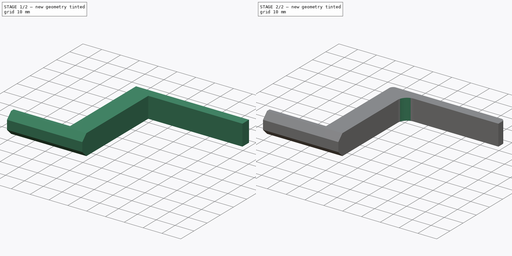
[diagram: build sequence overview — one tinted view per stage of 2, left to right]
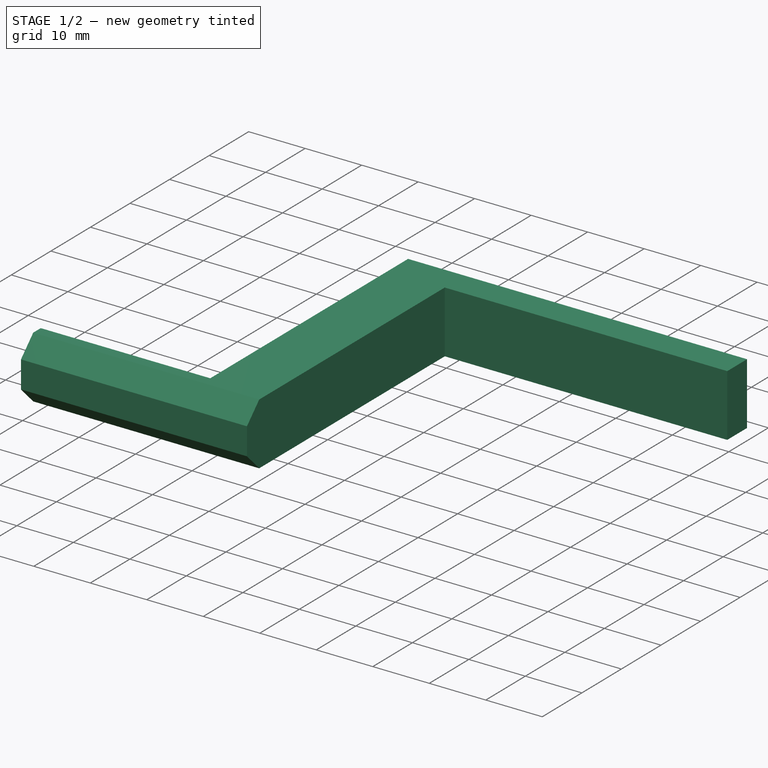
[diagram: stage 1 of 2 — iso view after this stage's code; geometry added in this stage tinted green]
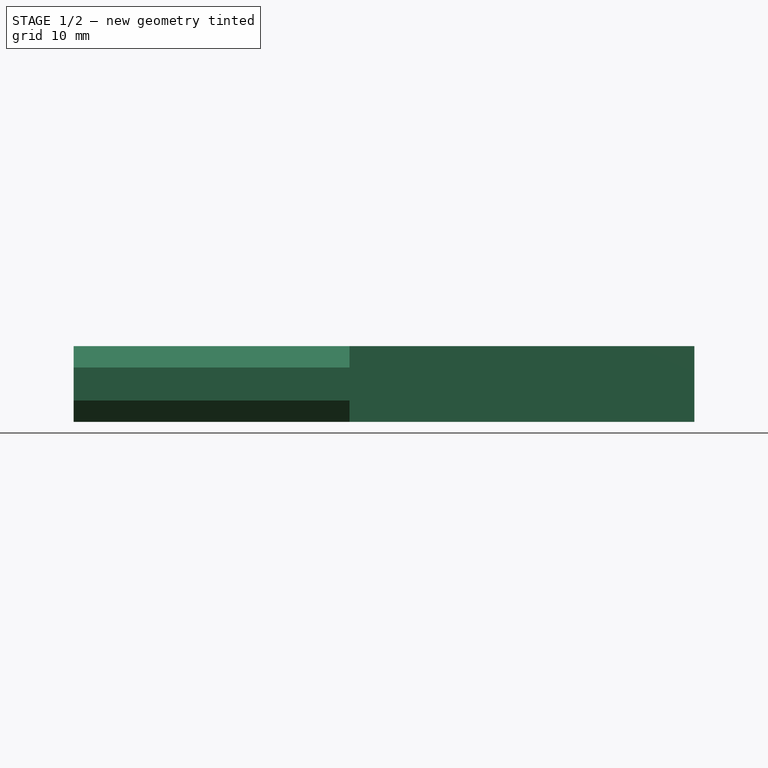
[diagram: stage 1 of 2 — front view after this stage's code; geometry added in this stage tinted green]
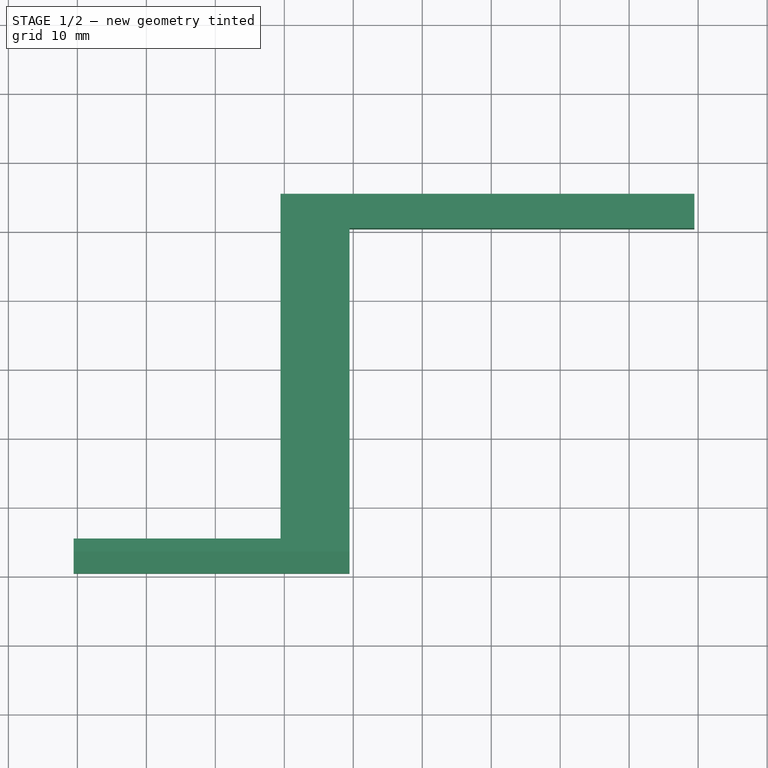
[diagram: stage 1 of 2 — top view after this stage's code; geometry added in this stage tinted green]
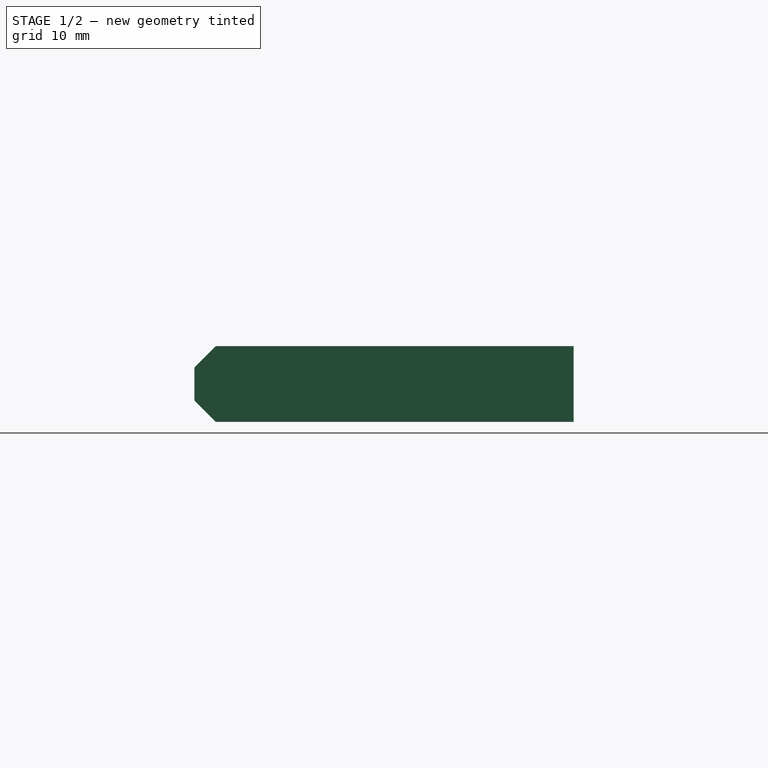
[diagram: stage 1 of 2 — right view after this stage's code; geometry added in this stage tinted green]
FCSTD DOCUMENT  (FreeCAD 0.18R4 (GitTag))
Label: Gancho_LG
License: All rights reserved
LicenseURL: http://en.wikipedia.org/wiki/All_rights_reserved
objects: PartDesign::Fillet×2, Sketcher::SketchObject×1, PartDesign::Pad×1, PartDesign::Chamfer×1, PartDesign::Body×1
note: 7 computed .brp shape members not serialized (recipe doc carries the construction recipe); baked Part::Feature solids carry a one-line shape summary decoded from their .brp

FEATURE [Sketcher::SketchObject] Sketch
  MapMode = 5
  Support = -> [XY_Plane]
  sketch-geometry (8):
    g0: LineSegment StartX=-50.5447 StartY=-24.6161 StartZ=0 EndX=-50.5447 EndY=-29.6161 EndZ=0
    g1: LineSegment StartX=-50.5447 StartY=-29.6161 StartZ=0 EndX=-10.5447 EndY=-29.6161 EndZ=0
    g2: LineSegment StartX=-10.5447 StartY=-29.6161 StartZ=0 EndX=-10.5447 EndY=20.3839 EndZ=0
    g3: LineSegment StartX=-10.5447 StartY=20.3839 StartZ=0 EndX=39.4553 EndY=20.3839 EndZ=0
    g4: LineSegment StartX=39.4553 StartY=25.3839 StartZ=0 EndX=-20.5447 EndY=25.3839 EndZ=0
    g5: LineSegment StartX=-20.5447 StartY=25.3839 StartZ=0 EndX=-20.5447 EndY=-24.6161 EndZ=0
    g6: LineSegment StartX=-20.5447 StartY=-24.6161 StartZ=0 EndX=-50.5447 EndY=-24.6161 EndZ=0
    g7: LineSegment StartX=39.4553 StartY=20.3839 StartZ=0 EndX=39.4553 EndY=25.3839 EndZ=0
  constraints (22):
    c: Coincident(g0,g1)
    c: Coincident(g1,g2)
    c: Coincident(g2,g3)
    c: Coincident(g4,g5)
    c: Coincident(g5,g6)
    c: Coincident(g6,g0)
    c: Horizontal(g6)
    c: Horizontal(g1)
    c: Horizontal(g3)
    c: Horizontal(g4)
    c: Vertical(g0)
    c: Vertical(g5)
    c: Vertical(g2)
    c: DistanceX(g5,g1) = 10
    c: DistanceY(g0,g0) = 5
    c: Distance(g3) = 50
    c: Distance(g6) = 30
    c: Vertical(g7)
    c: Coincident(g7,g3)
    c: Distance(g2) = 50
    c: Equal(g5,g2)
    c: Coincident(g7,g4)
FEATURE [PartDesign::Pad] Pad
  Length = 11
  Length2 = 100
  Profile = -> Sketch
  Type = 0
FEATURE [PartDesign::Chamfer] Chamfer
  Base = -> Pad [Edge6,Edge7]
  BaseFeature = -> Pad
  Size = 3.1
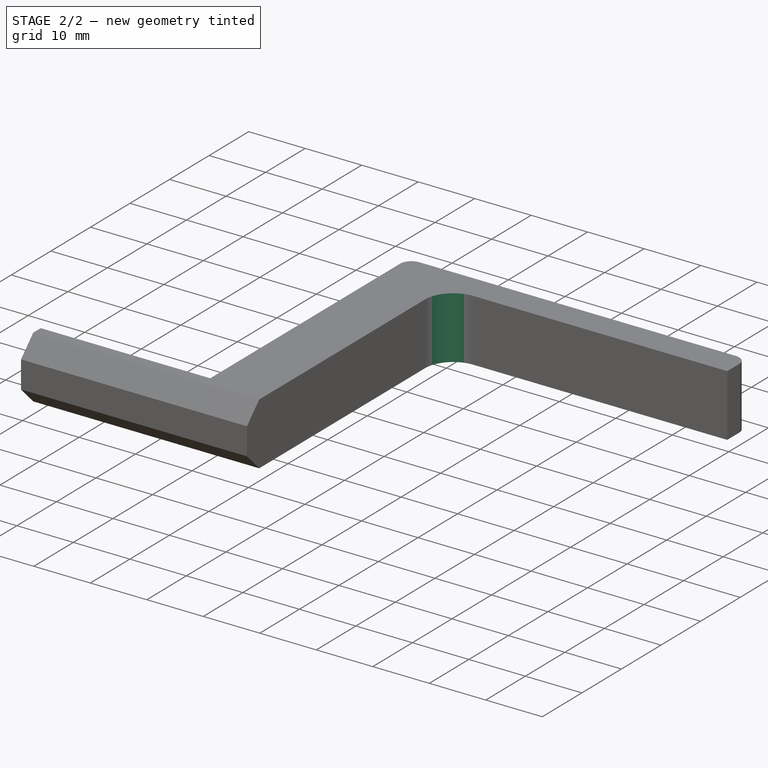
[diagram: stage 2 of 2 — iso view after this stage's code; geometry added in this stage tinted green]
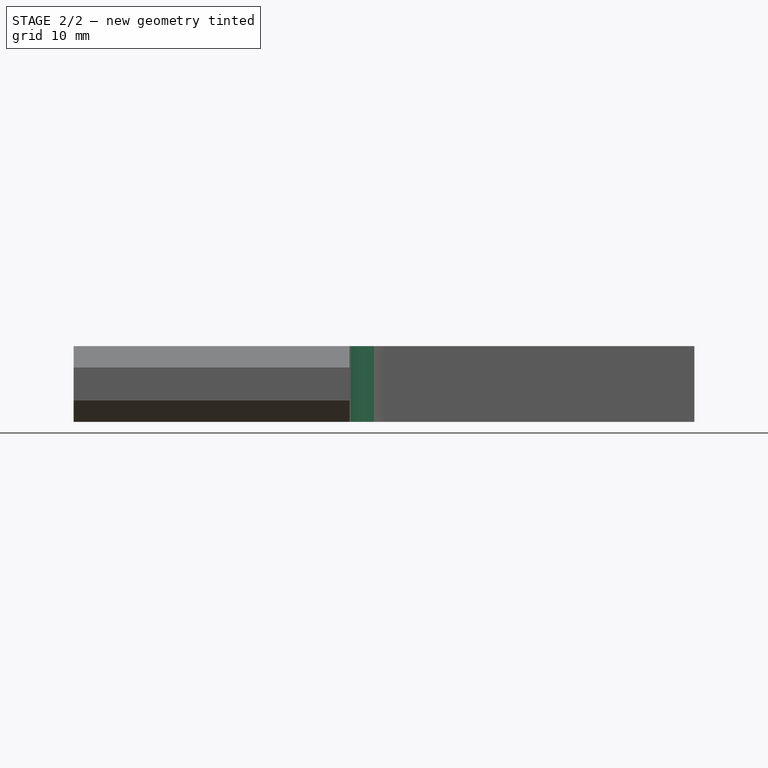
[diagram: stage 2 of 2 — front view after this stage's code; geometry added in this stage tinted green]
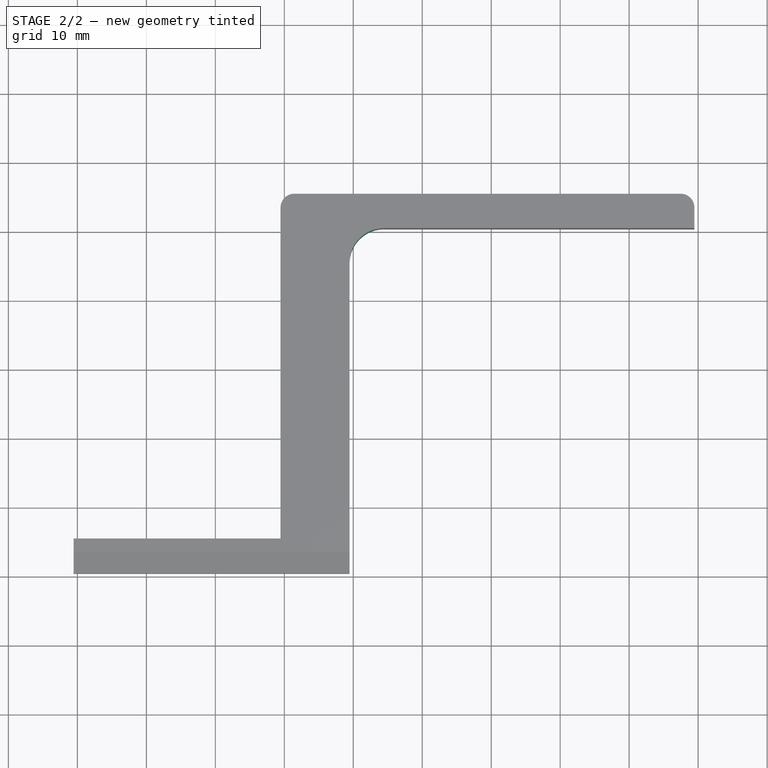
[diagram: stage 2 of 2 — top view after this stage's code; geometry added in this stage tinted green]
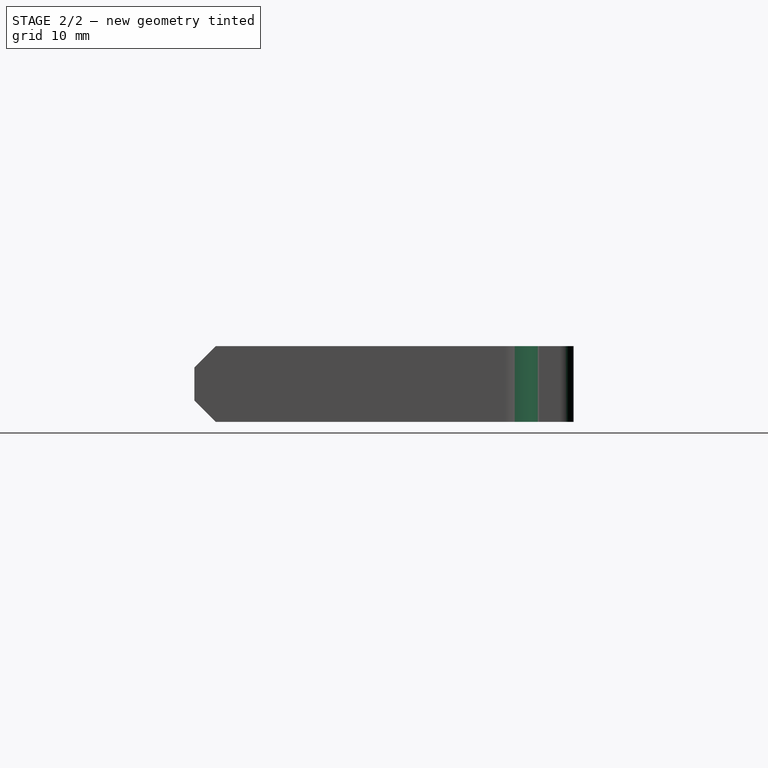
[diagram: stage 2 of 2 — right view after this stage's code; geometry added in this stage tinted green]
FEATURE [PartDesign::Fillet] Fillet
  Base = -> Chamfer [Edge30,Edge28]
  BaseFeature = -> Chamfer
  Radius = 2
FEATURE [PartDesign::Fillet] Fillet001
  Base = -> Fillet [Edge33]
  BaseFeature = -> Fillet
  Radius = 5
FEATURE [PartDesign::Body] Body
  Group = -> [Sketch,Pad,Chamfer,Fillet,Fillet001]
  Origin = -> Origin
  Tip = -> Fillet001
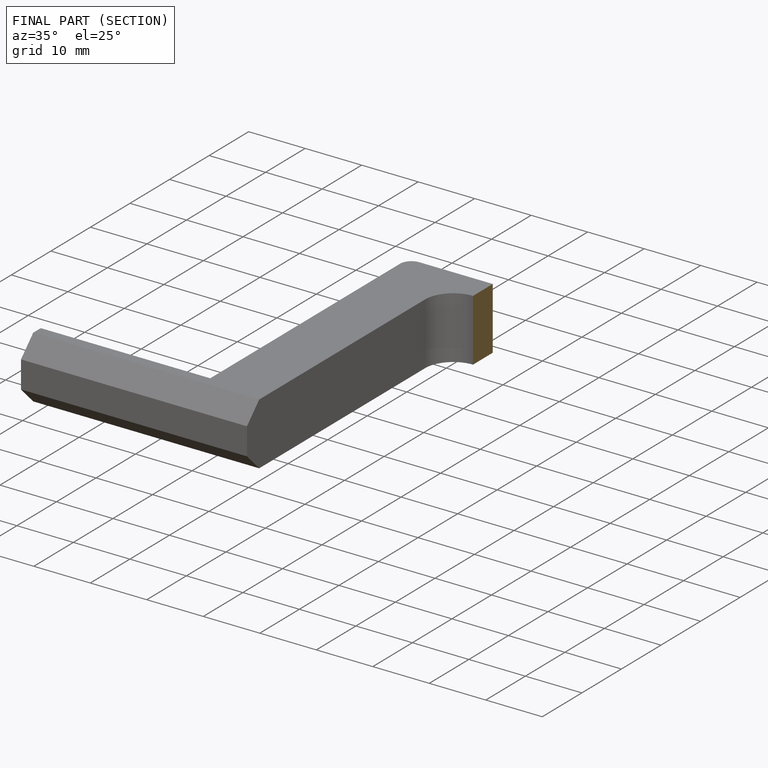
[diagram: finished part — half-section view (interior)]
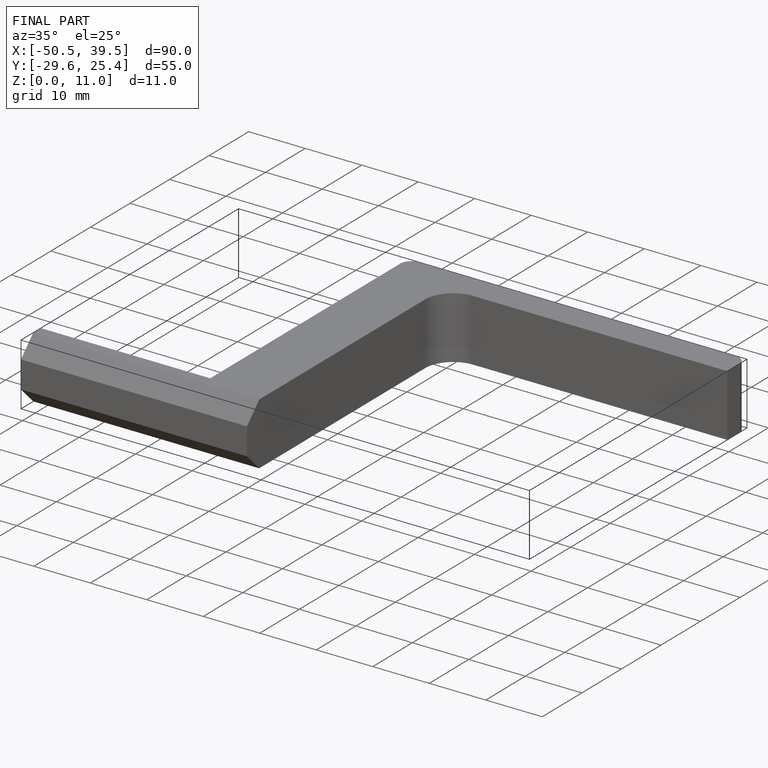
[diagram: finished part — iso view with bounding-box wireframe]
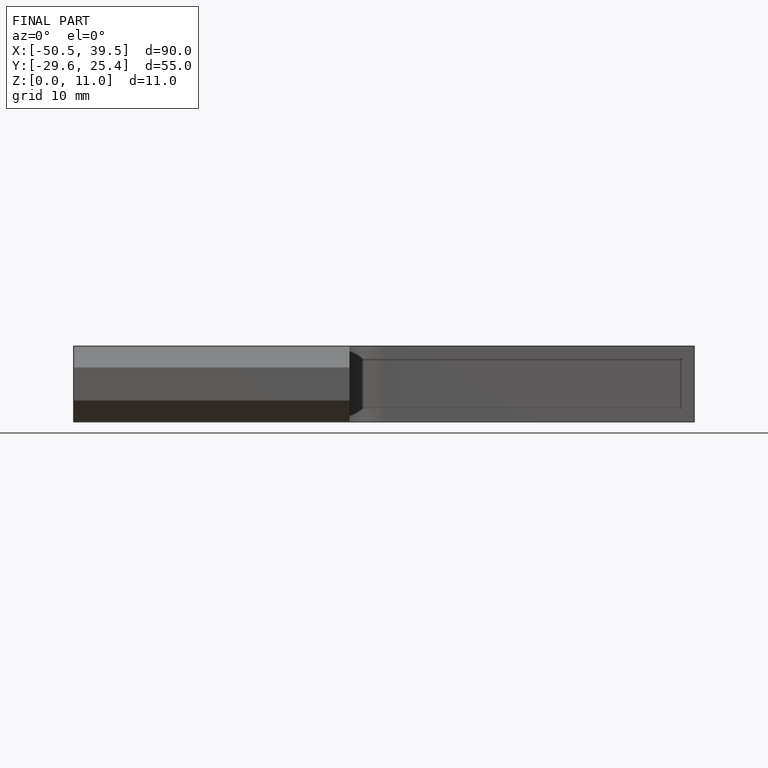
[diagram: finished part — front view with bounding-box wireframe]
